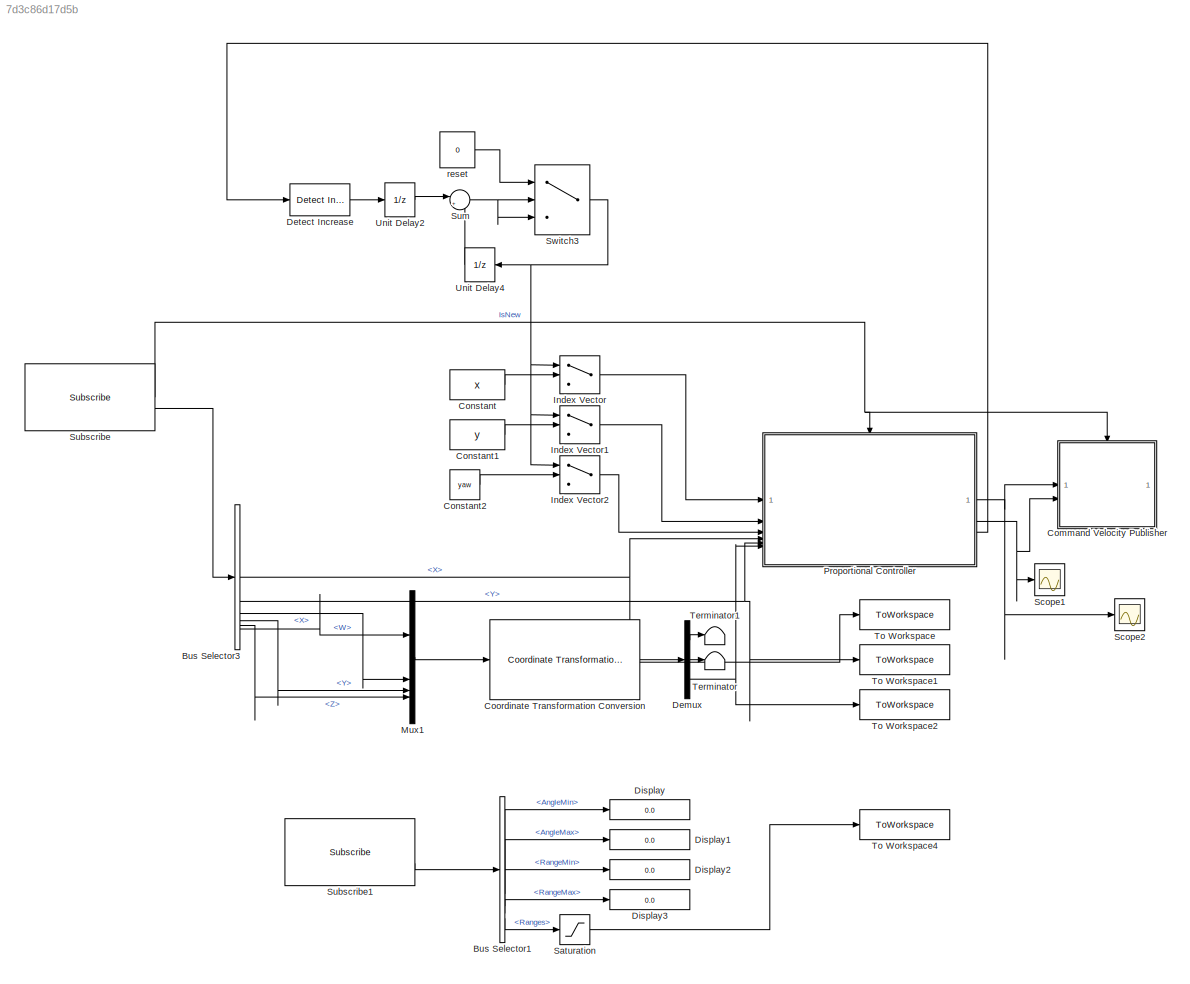
MODEL slx_7d3c86d17d5b
KIND model
CONFIG AbsTol = auto
CONFIG EnableMultiTasking = on
CONFIG FixedStep = 0.02
CONFIG MaxStep = auto
CONFIG MinStep = auto
CONFIG RelTol = 1e-3
CONFIG SampleTimeConstraint = Unconstrained
CONFIG SolverName = FixedStepDiscrete
CONFIG StartTime = 0.0
CONFIG StopTime = Inf
WORKSPACE source: mxarray member
WORKSPACE SL_ROS_VariableLengthArrays_MaxSizes: object (value not decoded)
BLOCK [BusSelector] Bus Selector1
  OutputSignals = AngleMin,AngleMax,RangeMin,RangeMax,Ranges
BLOCK [BusSelector] Bus Selector3
  OutputSignals = Pose.Pose.Position.X,Pose.Pose.Position.Y,Pose.Pose.Orientation.X,Pose.Pose.Orientation.Y,Pose.Pose.Orientation.Z,Pose.Pose.Orientation.W
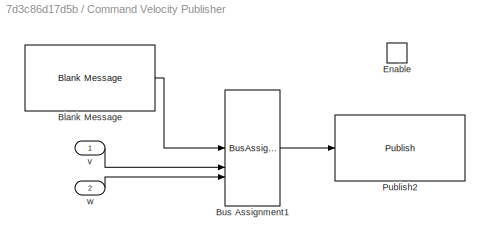
BLOCK [SubSystem] Command Velocity Publisher
BLOCK [Reference] Command Velocity Publisher/Blank Message  REF=robotlib/Blank Message
  SourceBlock = robotlib/Blank Message
  SourceType = ROS Blank Message
BLOCK [BusAssignment] Command Velocity Publisher/Bus Assignment1
  AssignedSignals = Linear.X,Angular.Z
  DialogController = Simulink.DDGSource_BusAssignment
BLOCK [EnablePort] Command Velocity Publisher/Enable
BLOCK [Reference] Command Velocity Publisher/Publish2  REF=robotlib/Publish
  AttributesFormatString = %<messageType>
  SourceBlock = robotlib/Publish
  SourceType = ROS Publish
BLOCK [Inport] Command Velocity Publisher/v
BLOCK [Inport] Command Velocity Publisher/w
  Port = 2
BLOCK [Constant] Constant
  Value = x
BLOCK [Constant] Constant1
  Value = y
BLOCK [Constant] Constant2
  Value = yaw
BLOCK [Reference] Coordinate Transformation Conversion  REF=robotcorelib/Coordinate Transformation Conversion
  LibrarySourceBlock = roslib/Utilities/Coordinate Transformation Conversion
  SourceBlock = robotcorelib/Coordinate Transformation Conversion
  SourceType = robotics.slcore.internal.block.CoordinateTransformationConversion
BLOCK [Demux] Demux
  Outputs = 3
BLOCK [Reference] Detect Increase  REF=simulink/Logic and Bit
Operations/Detect
Increase
  Commented = through
  SourceBlock = simulink/Logic and Bit\nOperations/Detect\nIncrease
  SourceType = Detect Increase
BLOCK [Display] Display
  Decimation = 1
BLOCK [Display] Display1
  Decimation = 1
BLOCK [Display] Display2
  Decimation = 1
BLOCK [Display] Display3
  Decimation = 1
BLOCK [MultiPortSwitch] Index Vector
  DataPortOrder = Zero-based contiguous
  InputSameDT = off
  Inputs = 1
  SaturateOnIntegerOverflow = off
  zeroidx = on
BLOCK [MultiPortSwitch] Index Vector1
  DataPortOrder = Zero-based contiguous
  InputSameDT = off
  Inputs = 1
  SaturateOnIntegerOverflow = off
  zeroidx = on
BLOCK [MultiPortSwitch] Index Vector2
  DataPortOrder = Zero-based contiguous
  InputSameDT = off
  Inputs = 1
  SaturateOnIntegerOverflow = off
  zeroidx = on
BLOCK [Mux] Mux1
  DisplayOption = bar
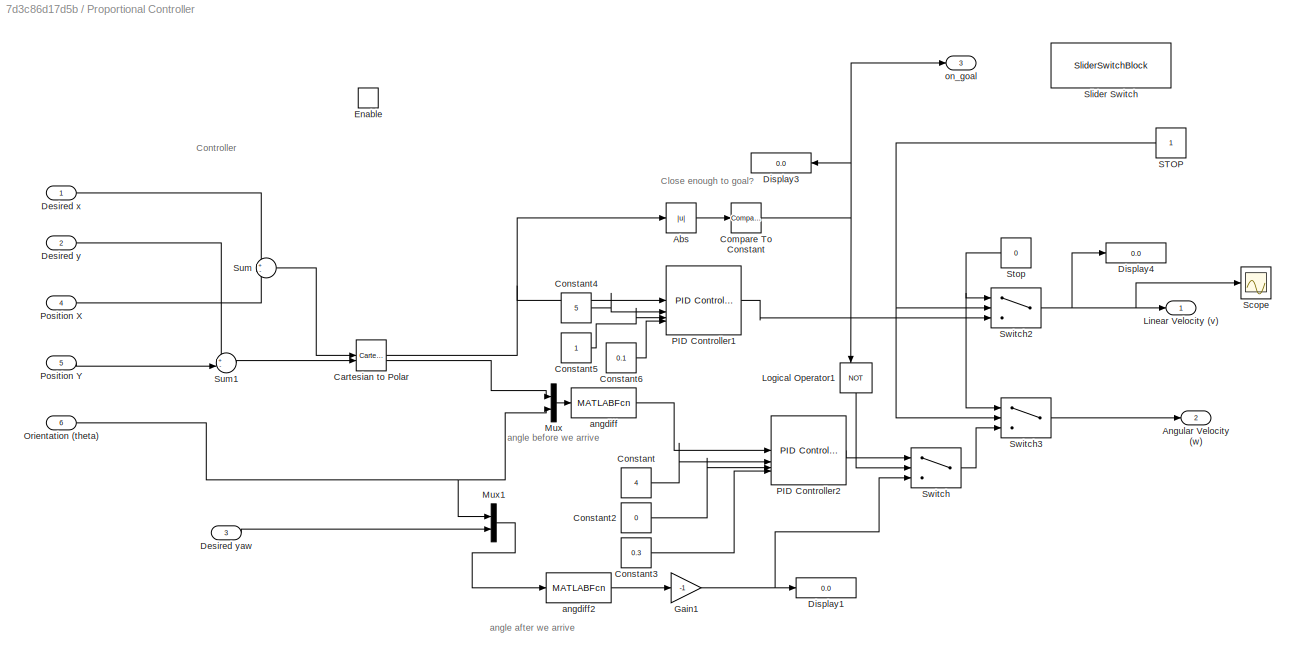
BLOCK [SubSystem] Proportional Controller
BLOCK [Abs] Proportional Controller/Abs
  SaturateOnIntegerOverflow = off
BLOCK [Outport] Proportional Controller/Angular Velocity (w)
  Port = 2
  VectorParamsAs1DForOutWhenUnconnected = off
BLOCK [Reference] Proportional Controller/Cartesian to Polar  REF=simulink_extras/Transformations/Cartesian to
Polar
  SourceBlock = simulink_extras/Transformations/Cartesian to\nPolar
  SourceType = Cart2Polar
BLOCK [Reference] Proportional Controller/Compare To Constant  REF=simulink/Logic and Bit
Operations/Compare
To Constant
  SourceBlock = simulink/Logic and Bit\nOperations/Compare\nTo Constant
  SourceType = Compare To Constant
BLOCK [Constant] Proportional Controller/Constant
  Value = 4
BLOCK [Constant] Proportional Controller/Constant2
  Value = 0
BLOCK [Constant] Proportional Controller/Constant3
  Value = 0.3
BLOCK [Constant] Proportional Controller/Constant4
  Value = 5
BLOCK [Constant] Proportional Controller/Constant5
BLOCK [Constant] Proportional Controller/Constant6
  Value = 0.1
BLOCK [Inport] Proportional Controller/Desired x
BLOCK [Inport] Proportional Controller/Desired y
  Port = 2
BLOCK [Inport] Proportional Controller/Desired yaw
  Port = 3
BLOCK [Display] Proportional Controller/Display1
  Decimation = 1
BLOCK [Display] Proportional Controller/Display3
  Decimation = 1
  NameLocation = top
BLOCK [Display] Proportional Controller/Display4
  Decimation = 1
BLOCK [EnablePort] Proportional Controller/Enable
BLOCK [Gain] Proportional Controller/Gain1
  Gain = -1
BLOCK [Outport] Proportional Controller/Linear Velocity (v)
  VectorParamsAs1DForOutWhenUnconnected = off
BLOCK [Logic] Proportional Controller/Logical Operator1
  AllPortsSameDT = off
  NameLocation = left
  Operator = NOT
  OutDataTypeStr = boolean
BLOCK [Mux] Proportional Controller/Mux
  DisplayOption = bar
  Inputs = 2
BLOCK [Mux] Proportional Controller/Mux1
  DisplayOption = bar
  Inputs = 2
BLOCK [Inport] Proportional Controller/Orientation (theta)
  Port = 6
BLOCK [Reference] Proportional Controller/PID Controller1  REF=slpidlib/PID Controller
  SourceBlock = slpidlib/PID Controller
  SourceType = PID 1dof
BLOCK [Reference] Proportional Controller/PID Controller2  REF=slpidlib/PID Controller
  SourceBlock = slpidlib/PID Controller
  SourceType = PID 1dof
BLOCK [Inport] Proportional Controller/Position X
  Port = 4
BLOCK [Inport] Proportional Controller/Position Y
  Port = 5
BLOCK [Constant] Proportional Controller/STOP 
  NameLocation = top
BLOCK [Scope] Proportional Controller/Scope
  Floating = off
  NumInputPorts = 1
  ScopeSpecificationString = Simulink.scopes.TimeScopeBlockCfg('CurrentConfiguration', extmgr.ConfigurationSet(extmgr.Configuration('Core','General UI',true),extmgr.Configuration('Core','Source UI',true),extmgr.Configuration('Sources','WiredSimulink',true,'DataLoggingVariableName','ScopeData1'),extmgr.Configuration('Visuals','Time Domain',true,'SerializedDisplays',{struct('MinYLimReal','-3.43827','MaxYLimReal','30.94444','YLa...<+1452ch>
BLOCK [SliderSwitchBlock] Proportional Controller/Slider Switch
BLOCK [Constant] Proportional Controller/Stop
  NameLocation = top
  Value = 0
BLOCK [Sum] Proportional Controller/Sum
  Inputs = +-
BLOCK [Sum] Proportional Controller/Sum1
  Inputs = +-|
BLOCK [Switch] Proportional Controller/Switch
  Criteria = u2 > Threshold
  InputSameDT = off
  SaturateOnIntegerOverflow = off
BLOCK [Switch] Proportional Controller/Switch2
  Criteria = u2 ~= 0
  InputSameDT = off
  SaturateOnIntegerOverflow = off
BLOCK [Switch] Proportional Controller/Switch3
  Criteria = u2 ~= 0
  InputSameDT = off
  SaturateOnIntegerOverflow = off
BLOCK [MATLABFcn] Proportional Controller/angdiff
  MATLABFcn = angdiff(u(2), u(1))
BLOCK [MATLABFcn] Proportional Controller/angdiff2
  MATLABFcn = angdiff(u(2), u(1))
  OutputDimensions = 1
BLOCK [Outport] Proportional Controller/on_goal
  Port = 3
BLOCK [Saturate] Saturation
  LinearizeAsGain = off
  LowerLimit = 0.12
  UpperLimit = 3.5
BLOCK [Scope] Scope1
  Floating = off
  NumInputPorts = 1
  ScopeSpecificationString = Simulink.scopes.TimeScopeBlockCfg('CurrentConfiguration', extmgr.ConfigurationSet(extmgr.Configuration('Core','General UI',true),extmgr.Configuration('Core','Source UI',true),extmgr.Configuration('Sources','WiredSimulink',true,'DataLoggingVariableName','ScopeData1'),extmgr.Configuration('Visuals','Time Domain',true,'SerializedDisplays',{struct('MinYLimReal','-0.34679','MaxYLimReal','2.56799','YLab...<+1450ch>
BLOCK [Scope] Scope2
  Floating = off
  NumInputPorts = 1
  ScopeSpecificationString = Simulink.scopes.TimeScopeBlockCfg('CurrentConfiguration', extmgr.ConfigurationSet(extmgr.Configuration('Core','General UI',true),extmgr.Configuration('Core','Source UI',true),extmgr.Configuration('Sources','WiredSimulink',true,'DataLoggingVariableName','ScopeData2'),extmgr.Configuration('Visuals','Time Domain',true,'SerializedDisplays',{struct('MinYLimReal','-0.0274','MaxYLimReal','0.2466','YLabel...<+1378ch>
BLOCK [Reference] Subscribe  REF=robotlib/Subscribe
  SourceBlock = robotlib/Subscribe
  SourceType = ROS Subscribe
BLOCK [Reference] Subscribe1  REF=robotlib/Subscribe
  SourceBlock = robotlib/Subscribe
  SourceType = ROS Subscribe
BLOCK [Sum] Sum
  Inputs = |++
BLOCK [Switch] Switch3
  InputSameDT = off
  SaturateOnIntegerOverflow = off
  Threshold = length(x)
BLOCK [Terminator] Terminator
BLOCK [Terminator] Terminator1
BLOCK [ToWorkspace] To Workspace
  FixptAsFi = on
  MaxDataPoints = inf
  SampleTime = -1
  SaveFormat = Timeseries
  VariableName = x_exp
BLOCK [ToWorkspace] To Workspace1
  FixptAsFi = on
  MaxDataPoints = inf
  SampleTime = -1
  SaveFormat = Timeseries
  VariableName = y_exp
BLOCK [ToWorkspace] To Workspace2
  FixptAsFi = on
  MaxDataPoints = inf
  SampleTime = -1
  SaveFormat = Timeseries
  VariableName = theta_exp
BLOCK [ToWorkspace] To Workspace4
  FixptAsFi = on
  MaxDataPoints = inf
  SampleTime = -1
  SaveFormat = Timeseries
  VariableName = ranges_exp
BLOCK [UnitDelay] Unit Delay2
  HasFrameUpgradeWarning = on
  SampleTime = -1
BLOCK [UnitDelay] Unit Delay4
  HasFrameUpgradeWarning = on
  SampleTime = -1
BLOCK [Constant] reset
  Value = 0
  VectorParams1D = off
ANNOTATION Proportional Controller: Controller
ANNOTATION Proportional Controller: Close enough to goal?
ANNOTATION Proportional Controller: angle after we arrive
ANNOTATION Proportional Controller: angle before we arrive
LINE Bus Selector1:1 -> Display:1
LINE Bus Selector1:2 -> Display1:1
LINE Bus Selector1:3 -> Display2:1
LINE Bus Selector1:4 -> Display3:1
LINE Bus Selector1:5 -> Saturation:1
NET Bus Selector3:1 -> Proportional Controller:4, To Workspace:1
NET Bus Selector3:2 -> Proportional Controller:5, To Workspace1:1
LINE Bus Selector3:3 -> Mux1:2
LINE Bus Selector3:4 -> Mux1:3
LINE Bus Selector3:5 -> Mux1:4
LINE Bus Selector3:6 -> Mux1:1
LINE Command Velocity Publisher/Blank Message:1 -> Command Velocity Publisher/Bus Assignment1:1
LINE Command Velocity Publisher/Bus Assignment1:1 -> Command Velocity Publisher/Publish2:1
LINE Command Velocity Publisher/v:1 -> Command Velocity Publisher/Bus Assignment1:2
LINE Command Velocity Publisher/w:1 -> Command Velocity Publisher/Bus Assignment1:3
LINE Constant1:1 -> Index Vector1:2
LINE Constant2:1 -> Index Vector2:2
LINE Constant:1 -> Index Vector:2
LINE Coordinate Transformation Conversion:1 -> Demux:1
LINE Demux:1 -> Terminator1:1
LINE Demux:2 -> Terminator:1
NET Demux:3 -> Proportional Controller:6, To Workspace2:1
LINE Detect Increase:1 -> Unit Delay2:1
LINE Index Vector1:1 -> Proportional Controller:2
LINE Index Vector2:1 -> Proportional Controller:3
LINE Index Vector:1 -> Proportional Controller:1
LINE Mux1:1 -> Coordinate Transformation Conversion:1
LINE Proportional Controller/Abs:1 -> Proportional Controller/Compare To Constant:1
NET Proportional Controller/Cartesian to Polar:1 -> Proportional Controller/Abs:1, Proportional Controller/PID Controller1:1
LINE Proportional Controller/Cartesian to Polar:2 -> Proportional Controller/Mux:1
NET Proportional Controller/Compare To Constant:1 -> Proportional Controller/Display3:1, Proportional Controller/Logical Operator1:1, Proportional Controller/on_goal:1
LINE Proportional Controller/Constant2:1 -> Proportional Controller/PID Controller2:3
LINE Proportional Controller/Constant3:1 -> Proportional Controller/PID Controller2:4
LINE Proportional Controller/Constant4:1 -> Proportional Controller/PID Controller1:2
LINE Proportional Controller/Constant5:1 -> Proportional Controller/PID Controller1:3
LINE Proportional Controller/Constant6:1 -> Proportional Controller/PID Controller1:4
LINE Proportional Controller/Constant:1 -> Proportional Controller/PID Controller2:2
LINE Proportional Controller/Desired x:1 -> Proportional Controller/Sum:1
LINE Proportional Controller/Desired y:1 -> Proportional Controller/Sum1:1
LINE Proportional Controller/Desired yaw:1 -> Proportional Controller/Mux1:2
NET Proportional Controller/Gain1:1 -> Proportional Controller/Display1:1, Proportional Controller/Switch:3
LINE Proportional Controller/Logical Operator1:1 -> Proportional Controller/Switch:2
LINE Proportional Controller/Mux1:1 -> Proportional Controller/angdiff2:1
LINE Proportional Controller/Mux:1 -> Proportional Controller/angdiff:1
NET Proportional Controller/Orientation (theta):1 -> Proportional Controller/Mux1:1, Proportional Controller/Mux:2
LINE Proportional Controller/PID Controller1:1 -> Proportional Controller/Switch2:3
LINE Proportional Controller/PID Controller2:1 -> Proportional Controller/Switch:1
LINE Proportional Controller/Position X:1 -> Proportional Controller/Sum:2
LINE Proportional Controller/Position Y:1 -> Proportional Controller/Sum1:2
NET Proportional Controller/STOP :1 -> Proportional Controller/Switch2:2, Proportional Controller/Switch3:2
NET Proportional Controller/Stop:1 -> Proportional Controller/Switch2:1, Proportional Controller/Switch3:1
LINE Proportional Controller/Sum1:1 -> Proportional Controller/Cartesian to Polar:2
LINE Proportional Controller/Sum:1 -> Proportional Controller/Cartesian to Polar:1
NET Proportional Controller/Switch2:1 -> Proportional Controller/Display4:1, Proportional Controller/Linear Velocity (v):1, Proportional Controller/Scope:1
LINE Proportional Controller/Switch3:1 -> Proportional Controller/Angular Velocity (w):1
LINE Proportional Controller/Switch:1 -> Proportional Controller/Switch3:3
LINE Proportional Controller/angdiff2:1 -> Proportional Controller/Gain1:1
LINE Proportional Controller/angdiff:1 -> Proportional Controller/PID Controller2:1
NET Proportional Controller:1 -> Command Velocity Publisher:1, Scope2:1
NET Proportional Controller:2 -> Command Velocity Publisher:2, Scope1:1
LINE Proportional Controller:3 -> Detect Increase:1
LINE Saturation:1 -> To Workspace4:1
LINE Subscribe1:2 -> Bus Selector1:1
NET Subscribe:1 -> Command Velocity Publisher:enable, Proportional Controller:enable
LINE Subscribe:2 -> Bus Selector3:1
NET Sum:1 -> Switch3:2, Switch3:3
NET Switch3:1 -> Index Vector1:1, Index Vector2:1, Index Vector:1, Unit Delay4:1
LINE Unit Delay2:1 -> Sum:1
LINE Unit Delay4:1 -> Sum:2
LINE reset:1 -> Switch3:1
note: NET lines group one-source signal fan-out (src -> all destinations, sorted); 1:1 wires keep LINE
